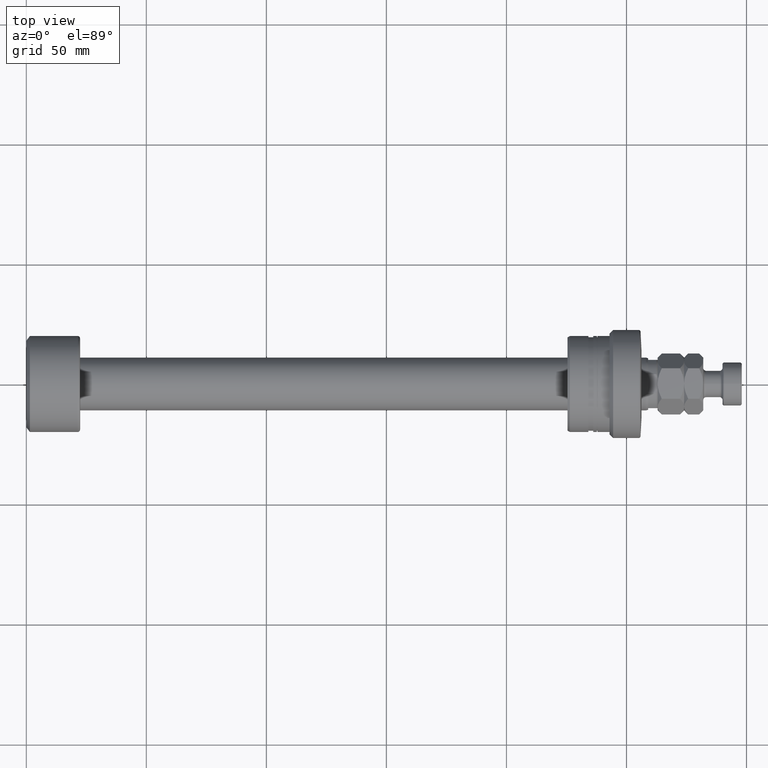
[diagram: clean part render]
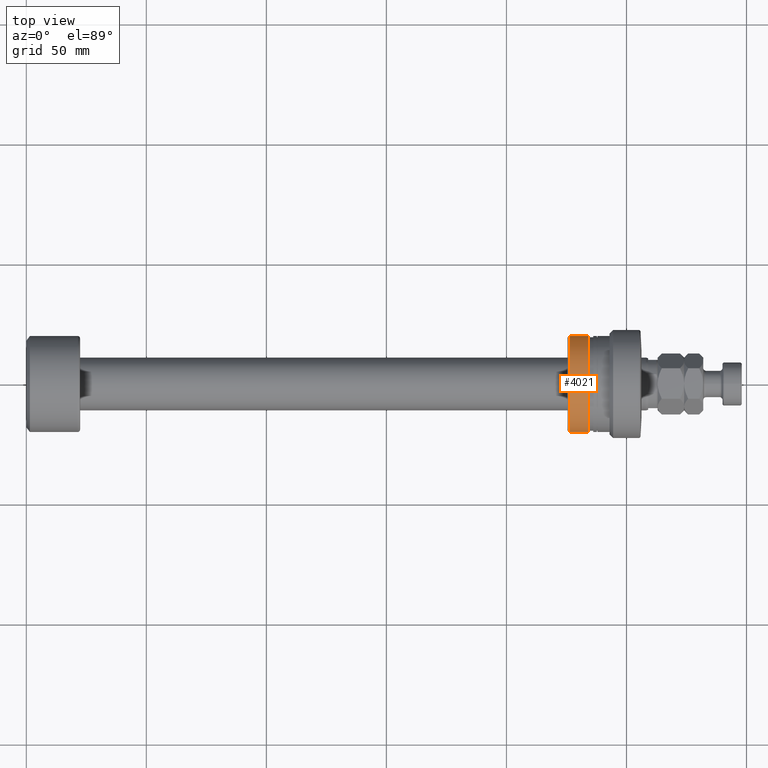
[diagram: same view with one face highlighted and labeled with its STEP entity id]
A machine part, top view. The second image highlights one B-rep face of the part: STEP entity #4021.
In plain terms, the highlighted cylindrical surface (partial cylindrical patch) has radius 20 mm, axis along (1, 0, 0).
Its self-contained STEP definition (entity closure, byte-faithful):
#136 = CARTESIAN_POINT ( 'NONE',  ( -22.80878161770243651, 2.270952640808137383E-14, 0.000000000000000000 ) ) ;
#152 = AXIS2_PLACEMENT_3D ( 'NONE', #3061, #3449, #1508 ) ;
#222 = VERTEX_POINT ( 'NONE', #1288 ) ;
#235 = LINE ( 'NONE', #2752, #1503 ) ;
#255 = VERTEX_POINT ( 'NONE', #729 ) ;
#264 = ORIENTED_EDGE ( 'NONE', *, *, #1358, .F. ) ;
#285 = CIRCLE ( 'NONE', #152, 20.00000000000000355 ) ;
#366 = CIRCLE ( 'NONE', #2416, 20.00000000000002842 ) ;
#372 = CARTESIAN_POINT ( 'NONE',  ( -22.80878161770250045, 20.00000000000005329, 0.000000000000000000 ) ) ;
#679 = DIRECTION ( 'NONE',  ( 1.000000000000000000, 3.039592211588219332E-15, -0.000000000000000000 ) ) ;
#729 = CARTESIAN_POINT ( 'NONE',  ( -30.50000000000018119, -20.00000000000000355, 2.449293598294706513E-15 ) ) ;
#775 = EDGE_CURVE ( 'NONE', #255, #1868, #235, .T. ) ;
#845 = ORIENTED_EDGE ( 'NONE', *, *, #2458, .T. ) ;
#1100 = DIRECTION ( 'NONE',  ( 1.000000000000000000, 3.039592211588219332E-15, -0.000000000000000000 ) ) ;
#1288 = CARTESIAN_POINT ( 'NONE',  ( -30.50000000000030553, 20.00000000000000355, 0.000000000000000000 ) ) ;
#1354 = EDGE_LOOP ( 'NONE', ( #845, #3831, #264, #2252 ) ) ;
#1358 = EDGE_CURVE ( 'NONE', #3872, #1868, #366, .T. ) ;
#1370 = CARTESIAN_POINT ( 'NONE',  ( -30.28002276692738803, 20.00000000000001776, 0.000000000000000000 ) ) ;
#1428 = FACE_OUTER_BOUND ( 'NONE', #1354, .T. ) ;
#1436 = DIRECTION ( 'NONE',  ( 1.000000000000000000, 3.039592211588219332E-15, -0.000000000000000000 ) ) ;
#1459 = DIRECTION ( 'NONE',  ( -3.122502256758248431E-15, 1.000000000000000000, 0.000000000000000000 ) ) ;
#1503 = VECTOR ( 'NONE', #679, 1000.000000000000000 ) ;
#1508 = DIRECTION ( 'NONE',  ( -3.122502256758252376E-15, 1.000000000000000000, 0.000000000000000000 ) ) ;
#1595 = AXIS2_PLACEMENT_3D ( 'NONE', #2646, #1100, #3905 ) ;
#1868 = VERTEX_POINT ( 'NONE', #4048 ) ;
#2152 = VECTOR ( 'NONE', #3833, 1000.000000000000000 ) ;
#2252 = ORIENTED_EDGE ( 'NONE', *, *, #3014, .F. ) ;
#2416 = AXIS2_PLACEMENT_3D ( 'NONE', #136, #1436, #1459 ) ;
#2458 = EDGE_CURVE ( 'NONE', #222, #255, #285, .T. ) ;
#2570 = LINE ( 'NONE', #1370, #2152 ) ;
#2646 = CARTESIAN_POINT ( 'NONE',  ( -30.28002276692732408, 0.000000000000000000, 0.000000000000000000 ) ) ;
#2752 = CARTESIAN_POINT ( 'NONE',  ( -30.28002276692726014, -20.00000000000001776, 2.449293598294708880E-15 ) ) ;
#3014 = EDGE_CURVE ( 'NONE', #222, #3872, #2570, .T. ) ;
#3061 = CARTESIAN_POINT ( 'NONE',  ( -30.50000000000024158, -6.686410843751637443E-16, 0.000000000000000000 ) ) ;
#3449 = DIRECTION ( 'NONE',  ( 1.000000000000000000, 3.039592211588219332E-15, -0.000000000000000000 ) ) ;
#3831 = ORIENTED_EDGE ( 'NONE', *, *, #775, .T. ) ;
#3833 = DIRECTION ( 'NONE',  ( 1.000000000000000000, 3.039592211588219332E-15, -0.000000000000000000 ) ) ;
#3872 = VERTEX_POINT ( 'NONE', #372 ) ;
#3905 = DIRECTION ( 'NONE',  ( -3.122502256758250009E-15, 1.000000000000000000, 0.000000000000000000 ) ) ;
#3925 = CYLINDRICAL_SURFACE ( 'NONE', #1595, 20.00000000000001776 ) ;
#4021 = ADVANCED_FACE ( 'NONE', ( #1428 ), #3925, .T. ) ;
#4048 = CARTESIAN_POINT ( 'NONE',  ( -22.80878161770237611, -20.00000000000000711, 2.449293598294709668E-15 ) ) ;